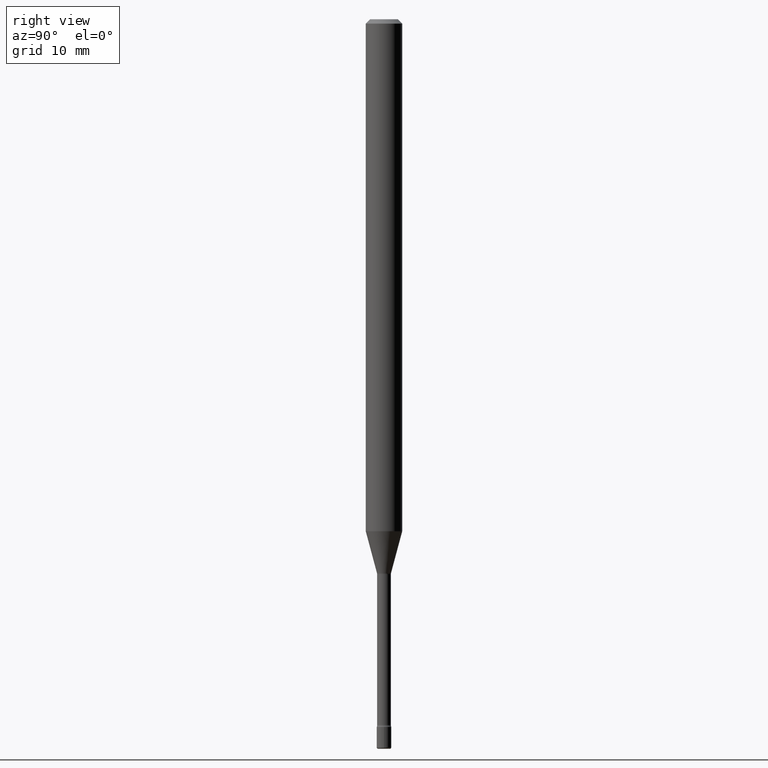
[diagram: clean part render]
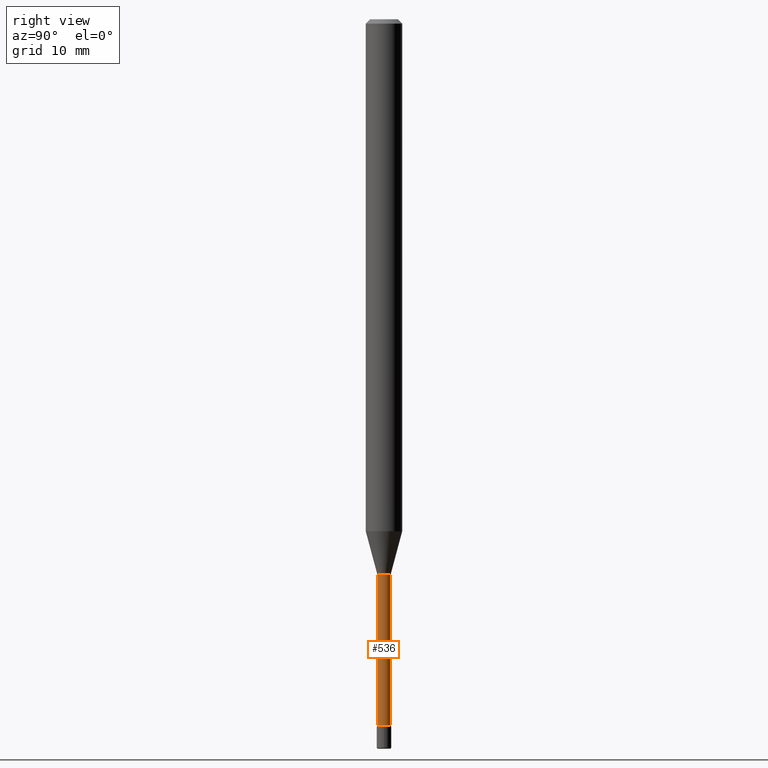
[diagram: same view with one face highlighted and labeled with its STEP entity id]
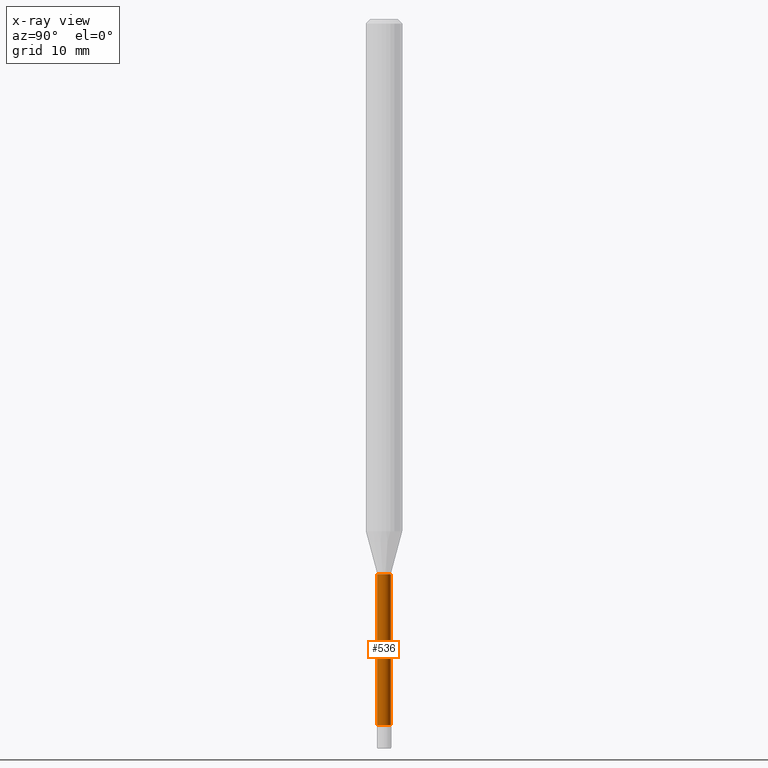
[diagram: x-ray of the same camera — body ghosted, the highlighted face saturated]
A machine part, right view. The second image highlights one B-rep face of the part: STEP entity #536.
The next image is the same camera in x-ray: the body ghosted, the highlighted face saturated — about 0% of this face is hidden behind the body in this view.
In plain terms, the highlighted cylindrical surface (edge-blend (fillet) strip) has radius 0.5969 mm, axis along (-0, 0, 1).
Its self-contained STEP definition (entity closure, byte-faithful):
#2 = CYLINDRICAL_SURFACE ( 'NONE', #528, 0.02350000000000000352 ) ;
#70 = AXIS2_PLACEMENT_3D ( 'NONE', #251, #334, #372 ) ;
#145 = ORIENTED_EDGE ( 'NONE', *, *, #439, .T. ) ;
#148 = VECTOR ( 'NONE', #169, 39.37007874015748143 ) ;
#156 = ORIENTED_EDGE ( 'NONE', *, *, #241, .F. ) ;
#157 = DIRECTION ( 'NONE',  ( -6.982962677686265922E-15, -1.000000000000000000, 0.000000000000000000 ) ) ;
#167 = CARTESIAN_POINT ( 'NONE',  ( 1.669775429036235194E-16, 0.02350000000000000352, 3.960213858672027518E-16 ) ) ;
#169 = DIRECTION ( 'NONE',  ( -2.445403387377062590E-29, 3.491575022299715255E-15, 1.000000000000000000 ) ) ;
#170 = CARTESIAN_POINT ( 'NONE',  ( -1.640996229256272766E-16, -0.02350000000000000352, 5.601254119152893254E-16 ) ) ;
#189 = EDGE_LOOP ( 'NONE', ( #233, #145, #274, #156 ) ) ;
#212 = DIRECTION ( 'NONE',  ( -2.445403387377062590E-29, 3.491575022299715255E-15, 1.000000000000000000 ) ) ;
#220 = CARTESIAN_POINT ( 'NONE',  ( 1.723066134218835880E-16, 0.02349999999999155889, -2.418461651584689065 ) ) ;
#232 = FACE_OUTER_BOUND ( 'NONE', #189, .T. ) ;
#233 = ORIENTED_EDGE ( 'NONE', *, *, #554, .T. ) ;
#241 = EDGE_CURVE ( 'NONE', #393, #378, #474, .T. ) ;
#251 = CARTESIAN_POINT ( 'NONE',  ( 4.651095587969773303E-29, -6.640887660952452658E-15, -1.901974787463811323 ) ) ;
#274 = ORIENTED_EDGE ( 'NONE', *, *, #277, .F. ) ;
#277 = EDGE_CURVE ( 'NONE', #378, #435, #321, .T. ) ;
#316 = DIRECTION ( 'NONE',  ( -2.445403387377062590E-29, 3.491575022299714860E-15, 1.000000000000000000 ) ) ;
#321 = CIRCLE ( 'NONE', #70, 0.02350000000000000352 ) ;
#334 = DIRECTION ( 'NONE',  ( -2.445403387377062590E-29, 3.491575022299714860E-15, 1.000000000000000000 ) ) ;
#353 = DIRECTION ( 'NONE',  ( -6.982962677686265922E-15, -1.000000000000000000, 3.491575022299714466E-15 ) ) ;
#354 = CARTESIAN_POINT ( 'NONE',  ( -1.169113584055446105E-44, 1.669184350826100908E-30, 4.780733988912460139E-16 ) ) ;
#365 = CIRCLE ( 'NONE', #387, 0.02350000000000000352 ) ;
#372 = DIRECTION ( 'NONE',  ( -6.982962677686265922E-15, -1.000000000000000000, 0.000000000000000000 ) ) ;
#376 = VERTEX_POINT ( 'NONE', #220 ) ;
#378 = VERTEX_POINT ( 'NONE', #515 ) ;
#387 = AXIS2_PLACEMENT_3D ( 'NONE', #401, #534, #157 ) ;
#388 = CARTESIAN_POINT ( 'NONE',  ( -1.640996229255681367E-16, -0.02350000000000844469, -2.418461651584689065 ) ) ;
#393 = VERTEX_POINT ( 'NONE', #388 ) ;
#401 = CARTESIAN_POINT ( 'NONE',  ( 5.914114315026723309E-29, -8.444240295062814699E-15, -2.418461651584689065 ) ) ;
#420 = CARTESIAN_POINT ( 'NONE',  ( 1.669775429036827579E-16, 0.02349999999999335953, -1.901974787463811323 ) ) ;
#435 = VERTEX_POINT ( 'NONE', #420 ) ;
#439 = EDGE_CURVE ( 'NONE', #376, #435, #550, .T. ) ;
#474 = LINE ( 'NONE', #170, #487 ) ;
#487 = VECTOR ( 'NONE', #212, 39.37007874015748143 ) ;
#515 = CARTESIAN_POINT ( 'NONE',  ( -1.640996229255807584E-16, -0.02350000000000664405, -1.901974787463811323 ) ) ;
#528 = AXIS2_PLACEMENT_3D ( 'NONE', #354, #316, #353 ) ;
#534 = DIRECTION ( 'NONE',  ( -2.445403387377062590E-29, 3.491575022299714860E-15, 1.000000000000000000 ) ) ;
#536 = ADVANCED_FACE ( 'NONE', ( #232 ), #2, .T. ) ;
#550 = LINE ( 'NONE', #167, #148 ) ;
#554 = EDGE_CURVE ( 'NONE', #393, #376, #365, .T. ) ;